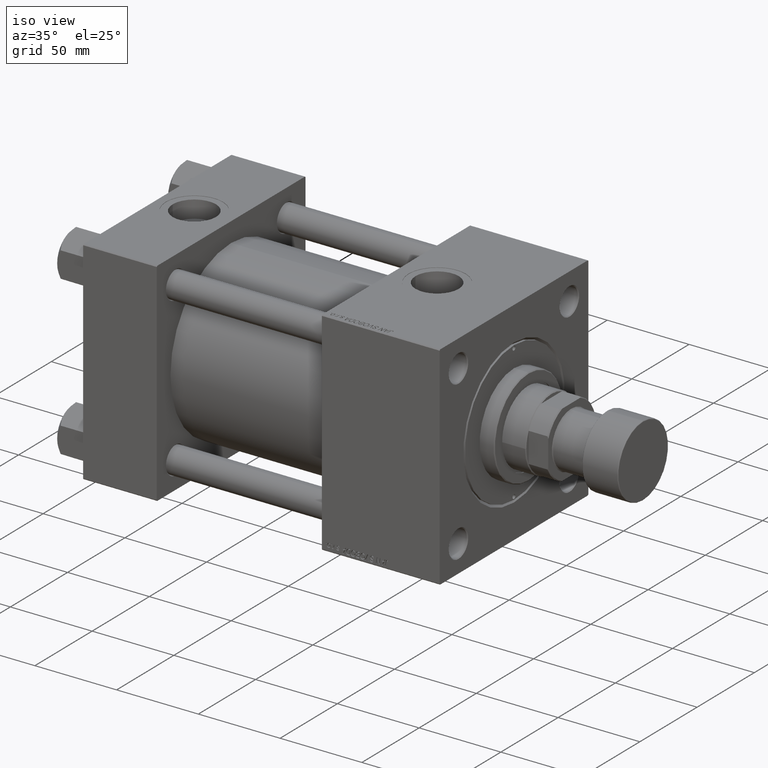
[diagram: clean part render]
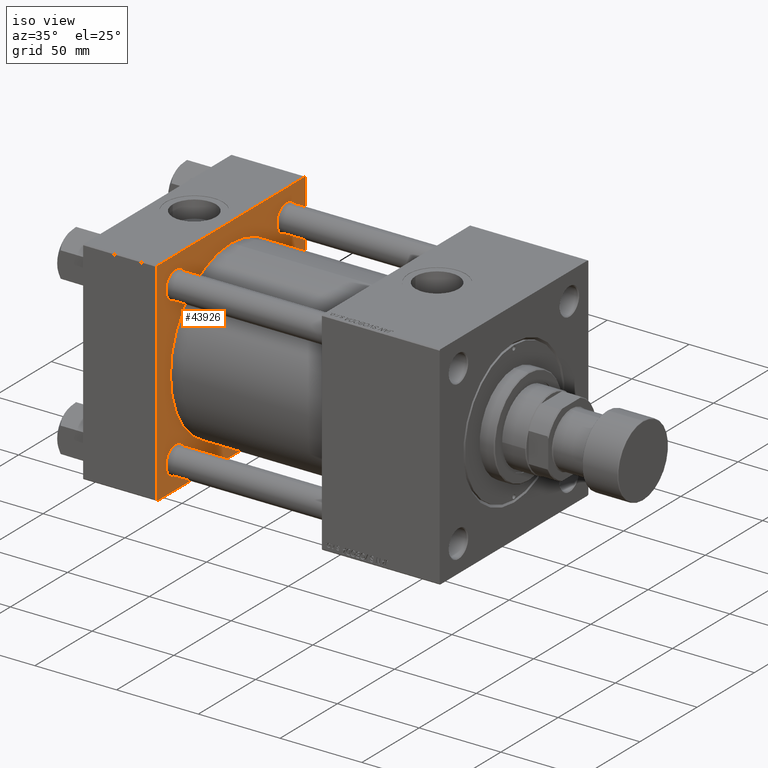
[diagram: same view with one face highlighted and labeled with its STEP entity id]
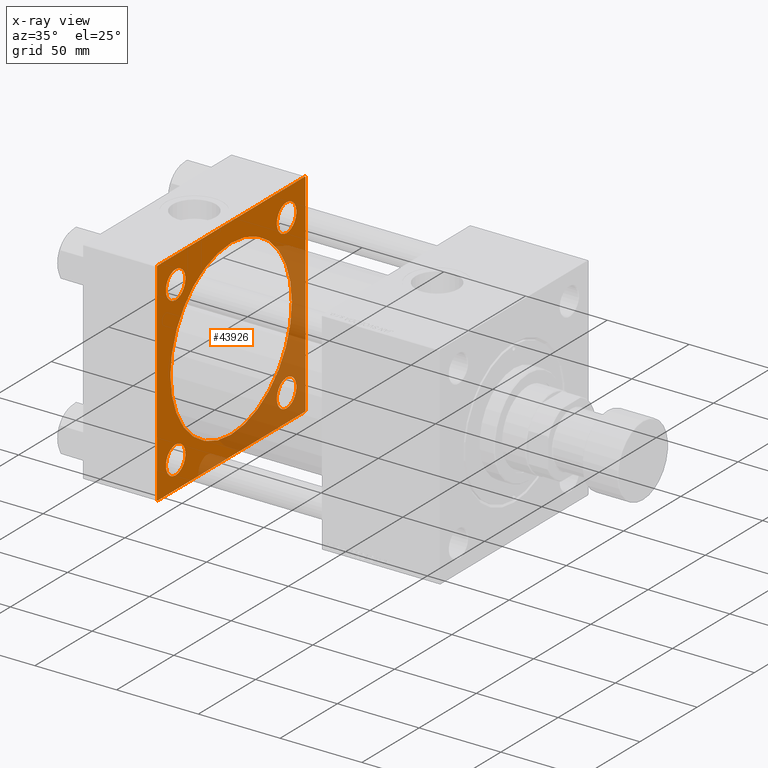
[diagram: x-ray of the same camera — body ghosted, the highlighted face saturated]
A machine part, iso view. The second image highlights one B-rep face of the part: STEP entity #43926.
The next image is the same camera in x-ray: the body ghosted, the highlighted face saturated — about 34% of this face is hidden behind the body in this view.
In plain terms, the highlighted planar face has unit normal (-1, 0, 0).
Its self-contained STEP definition (entity closure, byte-faithful):
#817 = EDGE_LOOP ( 'NONE', ( #5209, #27749 ) ) ;
#1379 = ORIENTED_EDGE ( 'NONE', *, *, #45214, .T. ) ;
#1635 = VERTEX_POINT ( 'NONE', #9538 ) ;
#1789 = DIRECTION ( 'NONE',  ( 0.000000000000000000, 0.000000000000000000, 1.000000000000000000 ) ) ;
#2060 = EDGE_CURVE ( 'NONE', #16954, #3540, #31234, .T. ) ;
#2288 = EDGE_CURVE ( 'NONE', #11150, #47646, #9047, .T. ) ;
#2462 = CIRCLE ( 'NONE', #35603, 8.499999999999980460 ) ;
#2488 = EDGE_CURVE ( 'NONE', #26465, #29239, #24285, .T. ) ;
#2913 = EDGE_LOOP ( 'NONE', ( #49570, #1379 ) ) ;
#3060 = DIRECTION ( 'NONE',  ( 0.000000000000000000, 0.000000000000000000, 1.000000000000000000 ) ) ;
#3361 = ORIENTED_EDGE ( 'NONE', *, *, #14396, .T. ) ;
#3540 = VERTEX_POINT ( 'NONE', #45884 ) ;
#4702 = CARTESIAN_POINT ( 'NONE',  ( 45.00000000000000000, 0.000000000000000000, 0.000000000000000000 ) ) ;
#5187 = CIRCLE ( 'NONE', #40788, 53.00000000000000711 ) ;
#5209 = ORIENTED_EDGE ( 'NONE', *, *, #10551, .T. ) ;
#5499 = VERTEX_POINT ( 'NONE', #34266 ) ;
#5577 = DIRECTION ( 'NONE',  ( 0.000000000000000000, -1.000000000000000000, -1.067522139062650425E-16 ) ) ;
#5644 = VERTEX_POINT ( 'NONE', #39443 ) ;
#5718 = EDGE_CURVE ( 'NONE', #29239, #26465, #5187, .T. ) ;
#5809 = CIRCLE ( 'NONE', #25672, 8.499999999999980460 ) ;
#6428 = CARTESIAN_POINT ( 'NONE',  ( 45.00000000000000000, 48.45000000000000995, -48.45000000000001705 ) ) ;
#6454 = CIRCLE ( 'NONE', #30436, 8.499999999999980460 ) ;
#6732 = EDGE_CURVE ( 'NONE', #8815, #50513, #35893, .T. ) ;
#7105 = VERTEX_POINT ( 'NONE', #23494 ) ;
#7519 = LINE ( 'NONE', #23594, #44418 ) ;
#8694 = CIRCLE ( 'NONE', #49244, 8.499999999999980460 ) ;
#8762 = CARTESIAN_POINT ( 'NONE',  ( 45.00000000000000000, 65.00000000000000000, -64.49999999999995737 ) ) ;
#8793 = LINE ( 'NONE', #24617, #22043 ) ;
#8815 = VERTEX_POINT ( 'NONE', #26799 ) ;
#9047 = LINE ( 'NONE', #39684, #39161 ) ;
#9507 = DIRECTION ( 'NONE',  ( -1.000000000000000000, 0.000000000000000000, -0.000000000000000000 ) ) ;
#9538 = CARTESIAN_POINT ( 'NONE',  ( 45.00000000000000000, 65.00000000000000000, 64.49999999999998579 ) ) ;
#9574 = FACE_BOUND ( 'NONE', #15433, .T. ) ;
#10097 = ORIENTED_EDGE ( 'NONE', *, *, #25174, .F. ) ;
#10551 = EDGE_CURVE ( 'NONE', #50513, #8815, #8694, .T. ) ;
#11150 = VERTEX_POINT ( 'NONE', #31019 ) ;
#11577 = EDGE_CURVE ( 'NONE', #7105, #5499, #28600, .T. ) ;
#11611 = CARTESIAN_POINT ( 'NONE',  ( 45.00000000000000000, 48.45000000000000995, 39.95000000000003126 ) ) ;
#11666 = ORIENTED_EDGE ( 'NONE', *, *, #2060, .T. ) ;
#11727 = VECTOR ( 'NONE', #5577, 1000.000000000000000 ) ;
#11888 = ORIENTED_EDGE ( 'NONE', *, *, #21524, .T. ) ;
#12962 = DIRECTION ( 'NONE',  ( -1.000000000000000000, 0.000000000000000000, -0.000000000000000000 ) ) ;
#12987 = DIRECTION ( 'NONE',  ( -1.000000000000000000, 0.000000000000000000, -0.000000000000000000 ) ) ;
#13675 = CARTESIAN_POINT ( 'NONE',  ( 45.00000000000000000, -2.602085213965210642E-15, 53.00000000000000711 ) ) ;
#13905 = DIRECTION ( 'NONE',  ( 0.000000000000000000, 0.000000000000000000, 1.000000000000000000 ) ) ;
#13966 = ORIENTED_EDGE ( 'NONE', *, *, #2288, .T. ) ;
#14202 = CARTESIAN_POINT ( 'NONE',  ( 45.00000000000000000, 64.49999999999997158, 65.00000000000001421 ) ) ;
#14308 = AXIS2_PLACEMENT_3D ( 'NONE', #26879, #22751, #3060 ) ;
#14396 = EDGE_CURVE ( 'NONE', #20141, #16954, #7519, .T. ) ;
#14534 = EDGE_CURVE ( 'NONE', #1635, #45266, #8793, .T. ) ;
#14628 = DIRECTION ( 'NONE',  ( -1.000000000000000000, 0.000000000000000000, -0.000000000000000000 ) ) ;
#14671 = ORIENTED_EDGE ( 'NONE', *, *, #39353, .T. ) ;
#14716 = DIRECTION ( 'NONE',  ( 0.000000000000000000, 0.000000000000000000, 1.000000000000000000 ) ) ;
#14759 = VERTEX_POINT ( 'NONE', #25062 ) ;
#15433 = EDGE_LOOP ( 'NONE', ( #11888, #14671 ) ) ;
#15700 = AXIS2_PLACEMENT_3D ( 'NONE', #36730, #48632, #26050 ) ;
#16954 = VERTEX_POINT ( 'NONE', #47539 ) ;
#17109 = FACE_BOUND ( 'NONE', #40238, .T. ) ;
#17340 = ORIENTED_EDGE ( 'NONE', *, *, #5718, .F. ) ;
#17379 = CARTESIAN_POINT ( 'NONE',  ( 45.00000000000000000, 48.45000000000000995, -48.45000000000001705 ) ) ;
#17749 = CARTESIAN_POINT ( 'NONE',  ( 45.00000000000000000, -48.44999999999999574, -48.45000000000003126 ) ) ;
#17855 = DIRECTION ( 'NONE',  ( 0.000000000000000000, 0.000000000000000000, 1.000000000000000000 ) ) ;
#18381 = ORIENTED_EDGE ( 'NONE', *, *, #14534, .T. ) ;
#18625 = EDGE_LOOP ( 'NONE', ( #28439, #26611 ) ) ;
#19015 = AXIS2_PLACEMENT_3D ( 'NONE', #6428, #50229, #14716 ) ;
#19024 = CARTESIAN_POINT ( 'NONE',  ( 45.00000000000000000, -48.44999999999999574, 48.45000000000003126 ) ) ;
#19965 = DIRECTION ( 'NONE',  ( -0.000000000000000000, 0.7071067811865474617, 0.7071067811865474617 ) ) ;
#20141 = VERTEX_POINT ( 'NONE', #43781 ) ;
#20388 = CARTESIAN_POINT ( 'NONE',  ( 45.00000000000000000, 65.00000000000000000, 65.00000000000001421 ) ) ;
#20596 = LINE ( 'NONE', #32782, #29725 ) ;
#20608 = DIRECTION ( 'NONE',  ( 0.000000000000000000, 0.000000000000000000, -1.000000000000000000 ) ) ;
#21215 = DIRECTION ( 'NONE',  ( 0.000000000000000000, -0.7071067811865474617, 0.7071067811865474617 ) ) ;
#21269 = DIRECTION ( 'NONE',  ( 0.000000000000000000, 0.000000000000000000, 1.000000000000000000 ) ) ;
#21486 = VECTOR ( 'NONE', #42714, 1000.000000000000000 ) ;
#21524 = EDGE_CURVE ( 'NONE', #5644, #35278, #6454, .T. ) ;
#21778 = VECTOR ( 'NONE', #20608, 1000.000000000000000 ) ;
#22043 = VECTOR ( 'NONE', #21215, 1000.000000000000114 ) ;
#22311 = AXIS2_PLACEMENT_3D ( 'NONE', #4702, #12962, #48737 ) ;
#22746 = CARTESIAN_POINT ( 'NONE',  ( 45.00000000000000000, 65.00000000000000000, 65.00000000000001421 ) ) ;
#22751 = DIRECTION ( 'NONE',  ( 1.000000000000000000, -0.000000000000000000, 0.000000000000000000 ) ) ;
#23494 = CARTESIAN_POINT ( 'NONE',  ( 45.00000000000000000, -48.44999999999999574, 39.95000000000004547 ) ) ;
#23594 = CARTESIAN_POINT ( 'NONE',  ( 45.00000000000000000, -65.00000000000000000, 64.50000000000000000 ) ) ;
#23930 = VERTEX_POINT ( 'NONE', #32992 ) ;
#24285 = CIRCLE ( 'NONE', #14308, 53.00000000000000711 ) ;
#24617 = CARTESIAN_POINT ( 'NONE',  ( 45.00000000000000000, 64.49999999999997158, 65.00000000000001421 ) ) ;
#24636 = DIRECTION ( 'NONE',  ( 1.000000000000000000, -0.000000000000000000, 0.000000000000000000 ) ) ;
#25062 = CARTESIAN_POINT ( 'NONE',  ( 45.00000000000000000, -64.49999999999994316, -65.00000000000000000 ) ) ;
#25085 = CARTESIAN_POINT ( 'NONE',  ( 45.00000000000000000, 48.45000000000000995, 48.45000000000001705 ) ) ;
#25118 = DIRECTION ( 'NONE',  ( -1.000000000000000000, 0.000000000000000000, -0.000000000000000000 ) ) ;
#25174 = EDGE_CURVE ( 'NONE', #11150, #14759, #20596, .T. ) ;
#25672 = AXIS2_PLACEMENT_3D ( 'NONE', #41436, #25118, #1789 ) ;
#26050 = DIRECTION ( 'NONE',  ( 0.000000000000000000, 0.000000000000000000, 1.000000000000000000 ) ) ;
#26465 = VERTEX_POINT ( 'NONE', #38136 ) ;
#26611 = ORIENTED_EDGE ( 'NONE', *, *, #39999, .T. ) ;
#26799 = CARTESIAN_POINT ( 'NONE',  ( 45.00000000000000000, 48.45000000000000995, 56.94999999999999574 ) ) ;
#26879 = CARTESIAN_POINT ( 'NONE',  ( 45.00000000000000000, -2.602085213965210642E-15, 0.000000000000000000 ) ) ;
#26935 = EDGE_LOOP ( 'NONE', ( #10097, #13966, #31749, #18381, #50770, #3361, #11666, #30635 ) ) ;
#27749 = ORIENTED_EDGE ( 'NONE', *, *, #6732, .T. ) ;
#27880 = CARTESIAN_POINT ( 'NONE',  ( 45.00000000000000000, -48.44999999999999574, -39.95000000000004547 ) ) ;
#28439 = ORIENTED_EDGE ( 'NONE', *, *, #41327, .T. ) ;
#28523 = CARTESIAN_POINT ( 'NONE',  ( 45.00000000000000000, -64.49999999999994316, -65.00000000000000000 ) ) ;
#28600 = CIRCLE ( 'NONE', #36069, 8.499999999999980460 ) ;
#28912 = LINE ( 'NONE', #20388, #11727 ) ;
#29116 = DIRECTION ( 'NONE',  ( 0.000000000000000000, -1.000000000000000000, -1.067522139062650425E-16 ) ) ;
#29239 = VERTEX_POINT ( 'NONE', #13675 ) ;
#29725 = VECTOR ( 'NONE', #29116, 1000.000000000000000 ) ;
#30436 = AXIS2_PLACEMENT_3D ( 'NONE', #17749, #33078, #37473 ) ;
#30442 = DIRECTION ( 'NONE',  ( 0.000000000000000000, 0.000000000000000000, 1.000000000000000000 ) ) ;
#30635 = ORIENTED_EDGE ( 'NONE', *, *, #50381, .T. ) ;
#31019 = CARTESIAN_POINT ( 'NONE',  ( 45.00000000000000000, 64.49999999999997158, -64.99999999999998579 ) ) ;
#31234 = LINE ( 'NONE', #36184, #21778 ) ;
#31749 = ORIENTED_EDGE ( 'NONE', *, *, #41258, .F. ) ;
#31918 = LINE ( 'NONE', #28523, #46539 ) ;
#32185 = VERTEX_POINT ( 'NONE', #50337 ) ;
#32444 = FACE_BOUND ( 'NONE', #18625, .T. ) ;
#32782 = CARTESIAN_POINT ( 'NONE',  ( 45.00000000000000000, 65.00000000000000000, -64.99999999999998579 ) ) ;
#32992 = CARTESIAN_POINT ( 'NONE',  ( 45.00000000000000000, 48.45000000000000995, -39.95000000000003126 ) ) ;
#33078 = DIRECTION ( 'NONE',  ( -1.000000000000000000, 0.000000000000000000, -0.000000000000000000 ) ) ;
#33381 = CARTESIAN_POINT ( 'NONE',  ( 45.00000000000000000, 48.45000000000000995, 48.45000000000001705 ) ) ;
#33384 = AXIS2_PLACEMENT_3D ( 'NONE', #33381, #9507, #40409 ) ;
#34266 = CARTESIAN_POINT ( 'NONE',  ( 45.00000000000000000, -48.44999999999999574, 56.95000000000000995 ) ) ;
#35278 = VERTEX_POINT ( 'NONE', #27880 ) ;
#35603 = AXIS2_PLACEMENT_3D ( 'NONE', #17379, #12987, #21269 ) ;
#35893 = CIRCLE ( 'NONE', #33384, 8.499999999999980460 ) ;
#36069 = AXIS2_PLACEMENT_3D ( 'NONE', #19024, #14628, #30442 ) ;
#36078 = DIRECTION ( 'NONE',  ( 0.000000000000000000, 0.7071067811865279218, -0.7071067811865671127 ) ) ;
#36184 = CARTESIAN_POINT ( 'NONE',  ( 45.00000000000000000, -65.00000000000000000, 65.00000000000000000 ) ) ;
#36343 = FACE_BOUND ( 'NONE', #817, .T. ) ;
#36593 = FACE_BOUND ( 'NONE', #2913, .T. ) ;
#36730 = CARTESIAN_POINT ( 'NONE',  ( 45.00000000000000000, -48.44999999999999574, -48.45000000000003126 ) ) ;
#37429 = ORIENTED_EDGE ( 'NONE', *, *, #2488, .F. ) ;
#37473 = DIRECTION ( 'NONE',  ( 0.000000000000000000, 0.000000000000000000, 1.000000000000000000 ) ) ;
#37777 = DIRECTION ( 'NONE',  ( -1.000000000000000000, 0.000000000000000000, -0.000000000000000000 ) ) ;
#38136 = CARTESIAN_POINT ( 'NONE',  ( 45.00000000000000000, 3.888542821515762466E-15, -53.00000000000000711 ) ) ;
#39096 = LINE ( 'NONE', #22746, #21486 ) ;
#39161 = VECTOR ( 'NONE', #19965, 1000.000000000000114 ) ;
#39353 = EDGE_CURVE ( 'NONE', #35278, #5644, #40550, .T. ) ;
#39425 = DIRECTION ( 'NONE',  ( -0.000000000000000000, -0.7071067811865672237, -0.7071067811865279218 ) ) ;
#39443 = CARTESIAN_POINT ( 'NONE',  ( 45.00000000000000000, -48.44999999999999574, -56.95000000000000995 ) ) ;
#39684 = CARTESIAN_POINT ( 'NONE',  ( 45.00000000000000000, 65.00000000000000000, -64.49999999999995737 ) ) ;
#39999 = EDGE_CURVE ( 'NONE', #23930, #32185, #2462, .T. ) ;
#40238 = EDGE_LOOP ( 'NONE', ( #17340, #37429 ) ) ;
#40409 = DIRECTION ( 'NONE',  ( 0.000000000000000000, 0.000000000000000000, 1.000000000000000000 ) ) ;
#40460 = CARTESIAN_POINT ( 'NONE',  ( 45.00000000000000000, -2.602085213965210642E-15, 0.000000000000000000 ) ) ;
#40550 = CIRCLE ( 'NONE', #15700, 8.499999999999980460 ) ;
#40788 = AXIS2_PLACEMENT_3D ( 'NONE', #40460, #24636, #17855 ) ;
#41258 = EDGE_CURVE ( 'NONE', #1635, #47646, #39096, .T. ) ;
#41327 = EDGE_CURVE ( 'NONE', #32185, #23930, #41377, .T. ) ;
#41377 = CIRCLE ( 'NONE', #19015, 8.499999999999980460 ) ;
#41436 = CARTESIAN_POINT ( 'NONE',  ( 45.00000000000000000, -48.44999999999999574, 48.45000000000003126 ) ) ;
#42714 = DIRECTION ( 'NONE',  ( 0.000000000000000000, 0.000000000000000000, -1.000000000000000000 ) ) ;
#43781 = CARTESIAN_POINT ( 'NONE',  ( 45.00000000000000000, -64.49999999999997158, 65.00000000000000000 ) ) ;
#43926 = ADVANCED_FACE ( 'NONE', ( #9574, #32444, #36593, #36343, #17109, #44111 ), #44607, .F. ) ;
#44111 = FACE_OUTER_BOUND ( 'NONE', #26935, .T. ) ;
#44418 = VECTOR ( 'NONE', #39425, 1000.000000000000000 ) ;
#44607 = PLANE ( 'NONE',  #22311 ) ;
#45214 = EDGE_CURVE ( 'NONE', #5499, #7105, #5809, .T. ) ;
#45266 = VERTEX_POINT ( 'NONE', #14202 ) ;
#45884 = CARTESIAN_POINT ( 'NONE',  ( 45.00000000000000000, -65.00000000000000000, -64.49999999999991473 ) ) ;
#46539 = VECTOR ( 'NONE', #36078, 1000.000000000000000 ) ;
#47539 = CARTESIAN_POINT ( 'NONE',  ( 45.00000000000000000, -65.00000000000000000, 64.50000000000000000 ) ) ;
#47646 = VERTEX_POINT ( 'NONE', #8762 ) ;
#47834 = EDGE_CURVE ( 'NONE', #45266, #20141, #28912, .T. ) ;
#48632 = DIRECTION ( 'NONE',  ( -1.000000000000000000, 0.000000000000000000, -0.000000000000000000 ) ) ;
#48737 = DIRECTION ( 'NONE',  ( -0.000000000000000000, 0.000000000000000000, 1.000000000000000000 ) ) ;
#49244 = AXIS2_PLACEMENT_3D ( 'NONE', #25085, #37777, #13905 ) ;
#49570 = ORIENTED_EDGE ( 'NONE', *, *, #11577, .T. ) ;
#50229 = DIRECTION ( 'NONE',  ( -1.000000000000000000, 0.000000000000000000, -0.000000000000000000 ) ) ;
#50337 = CARTESIAN_POINT ( 'NONE',  ( 45.00000000000000000, 48.45000000000000995, -56.94999999999999574 ) ) ;
#50381 = EDGE_CURVE ( 'NONE', #3540, #14759, #31918, .T. ) ;
#50513 = VERTEX_POINT ( 'NONE', #11611 ) ;
#50770 = ORIENTED_EDGE ( 'NONE', *, *, #47834, .T. ) ;